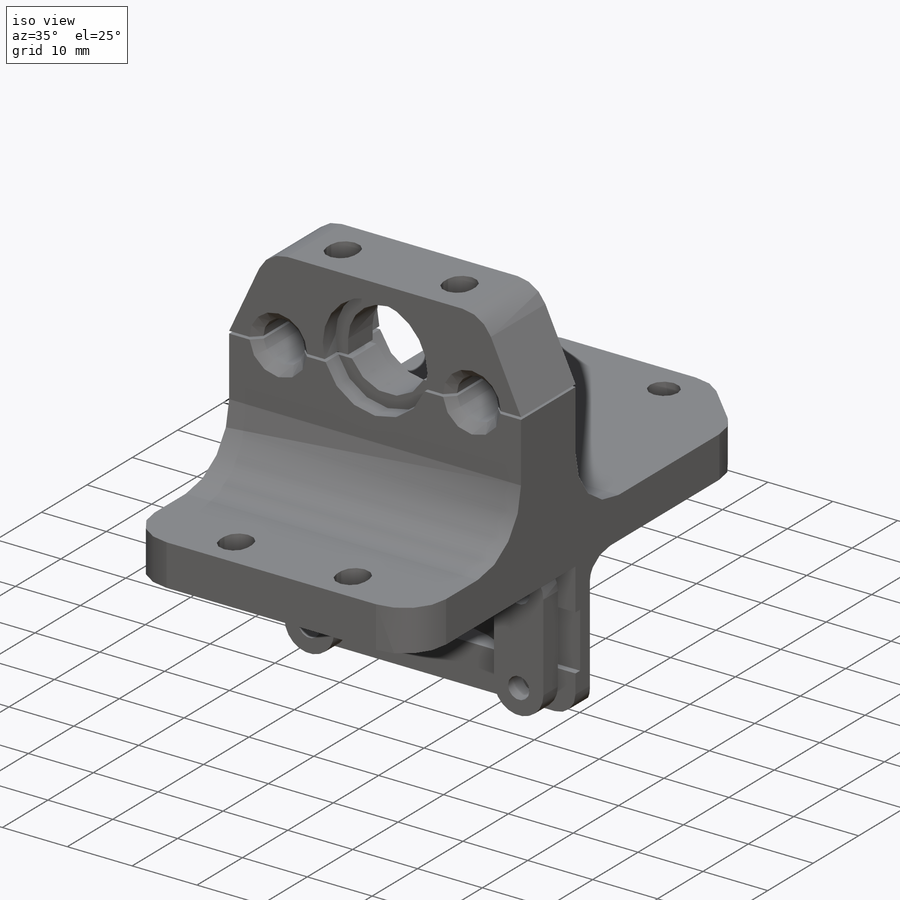
[diagram: iso view]
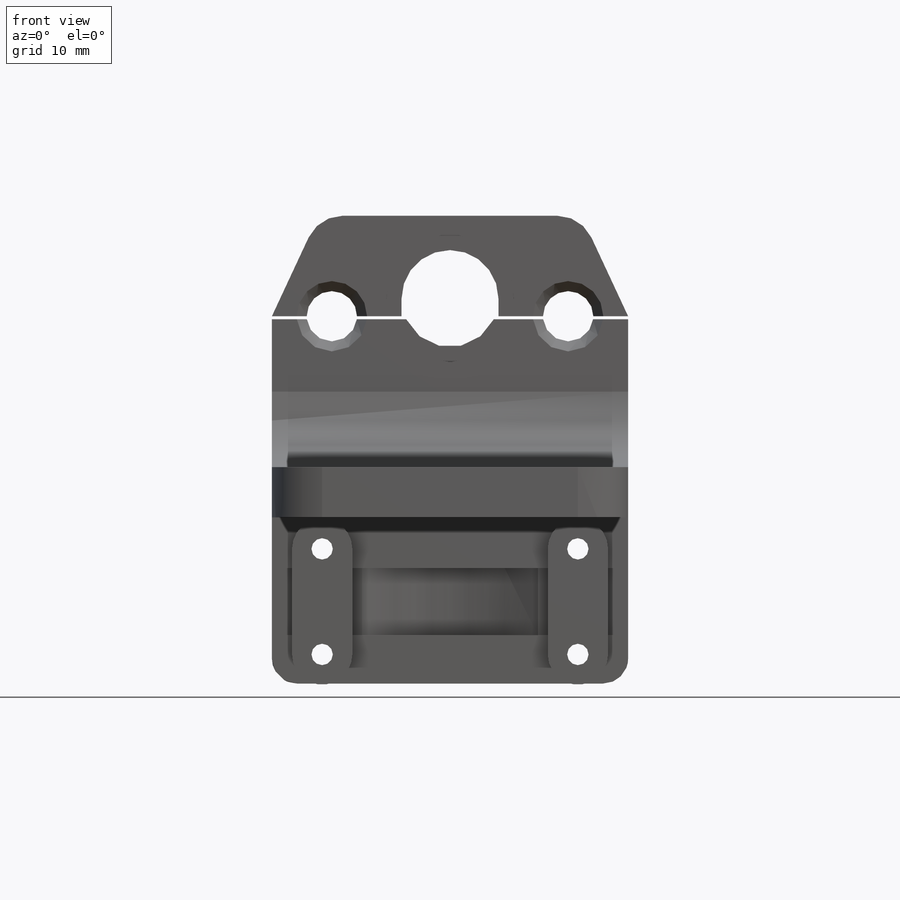
[diagram: front view]
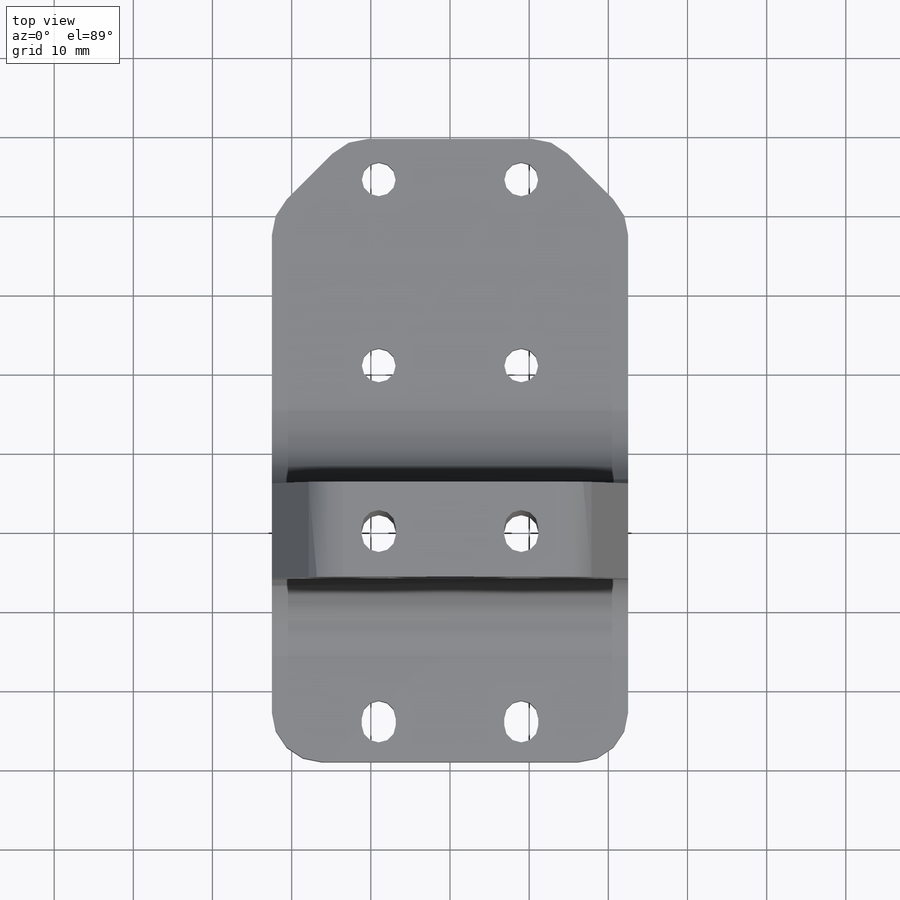
[diagram: top view]
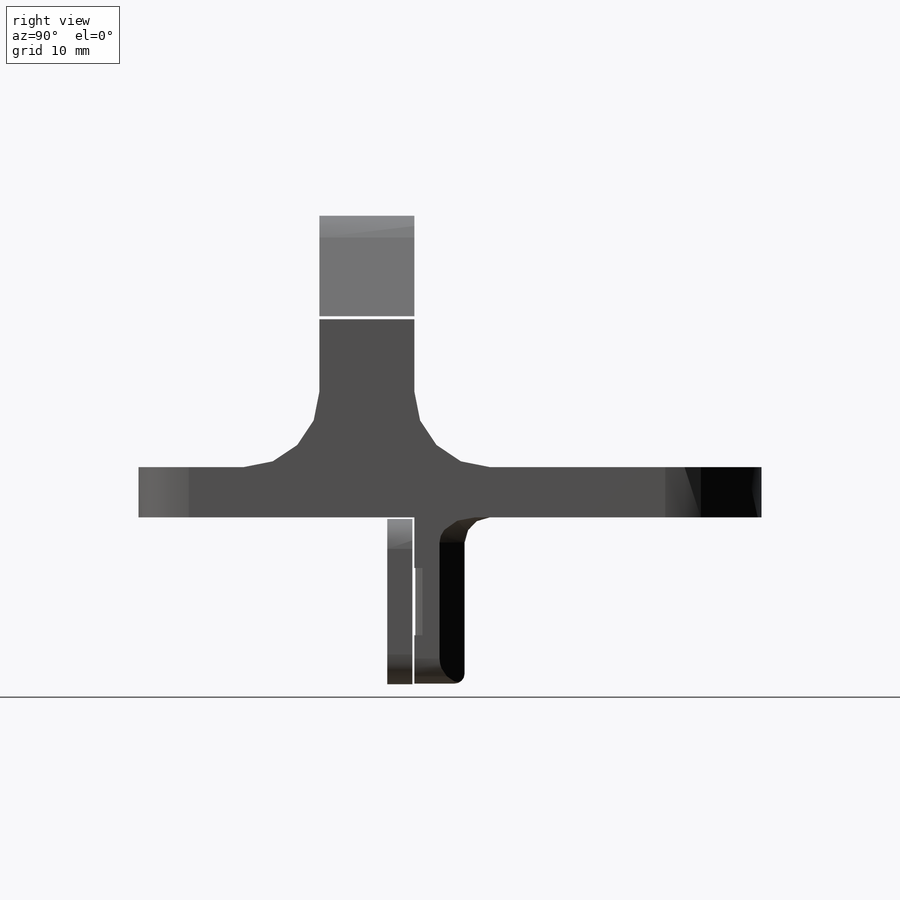
[diagram: right view]
SOLIDWORKS PART (.sldprt)
format: sldprt  version: not decoded by parser v0  size: 639,488 bytes
history: native  units: mm
features: sketch x11, cut_extrude x6, fillet x6, chamfer x5, extrude x4, mirror x2, material x1, cut_revolve x1 (+13 scaffold rows collapsed)
feature tree (49):
  scaffold x13  (default folders/planes/origin — collapsed)
  material  "Material <not specified>"
  sketch  "Sketch1"  dims[D6=4.3mm D1=78.7mm D2=45.0mm D3=23.5mm D4=18.0mm D5=45.0mm D7=1.0mm]
  extrude  "Boss-Extrude1"  Depth=6.35mm
  sketch  "Sketch2"  dims[D1=6.35mm D2=34.85mm]
  extrude  "Boss-Extrude2"  Depth=21mm
  sketch  "Sketch3"  dims[D1=12.0mm]
  extrude  "Boss-Extrude3"  Depth=31.75mm
  sketch  "Sketch4"  dims[D1=16.129mm D2=12.2428mm D3=3.8mm D4=5.4mm D5=29.35mm]
  cut_revolve  "Cut-Revolve1"  Angle=360deg
  sketch  "Sketch5"
  cut_extrude  "Cut-Extrude1"  [1 undecoded]
  chamfer  "Chamfer1"  Distance=12.7mm Angle=25deg
  sketch  "Sketch6"  dims[D1=0.381mm]
  cut_extrude  "Cut-Extrude2"  Depth=25.4mm
  fillet  "Fillet2"  Radius=9.525mm
  sketch  "Sketch8"  dims[c1.D4=0.889mm c1.D6=0.254mm c1.D1=1.016mm c1.D2=~1.922548mm c2.D2=45.0deg c2.D3=19.05mm c2.D4=0.5mm c2.D5=6.35mm c3.D2=1.016mm]
  cut_extrude  "Cut-Extrude3"  Depth=8.5mm
  sketch  "Sketch9"  dims[D1=2.7mm D2=13.335mm]
  cut_extrude  "Cut-Extrude4"  [1 undecoded]
  sketch  "Sketch10"  dims[D1=3.81mm D2=3.3mm]
  extrude  "Boss-Extrude5"  Depth=3.175mm
  mirror  "Mirror1"
  mirror  "Mirror3"
  chamfer  "Chamfer2"  Distance=3.175mm Angle=45deg
  fillet  "Fillet3"  Radius=3.175mm
  fillet  "Fillet4"  Radius=3.175mm
  sketch  "Sketch11"  dims[D1=6.35mm D2=29.845mm]
  cut_extrude  "Cut-Extrude5"  [1 undecoded]
  fillet  "Fillet5"  Radius=4.7625mm
  fillet  "Fillet6"  Radius=1.27mm
  chamfer  "Chamfer3"  Distance=1.27mm Angle=45deg
  chamfer  "Chamfer5"  Distance=1.27mm Angle=45deg
  chamfer  "Chamfer4"  Distance=9.525mm Angle=45deg
  fillet  "Fillet7"  Radius=6.35mm
  sketch  "Sketch21"  dims[D1=3.175mm D2=22.225mm]
  cut_extrude  "Cut-Extrude7"  [1 undecoded]
decode coverage: 28 of 35 modeling features carry decoded parameters
note: ~ marks probable driven/reference dimensions
note: 4 parameter values undecoded
summary: no parameter record found for 4 features
note: suppression state not decoded; provenance and decode notes live in map.json
